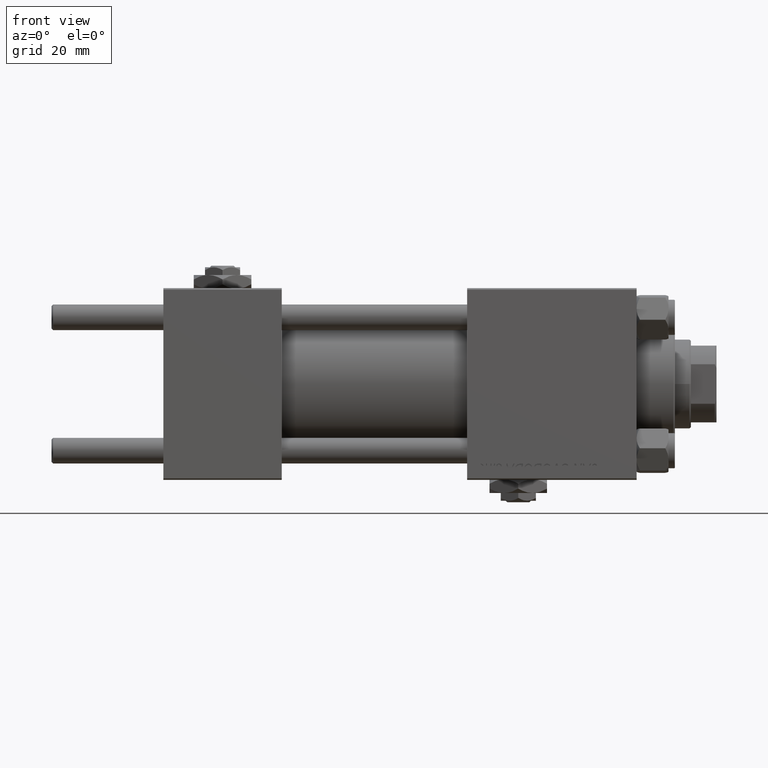
[diagram: clean part render]
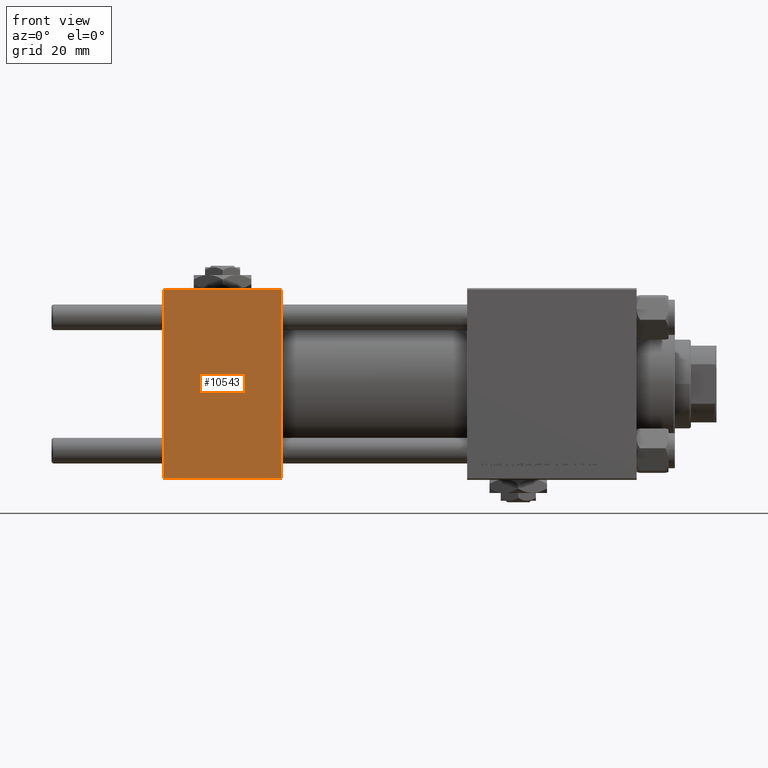
[diagram: same view with one face highlighted and labeled with its STEP entity id]
A machine part, front view. The second image highlights one B-rep face of the part: STEP entity #10543.
In plain terms, the highlighted planar face has unit normal (0, 1, 0).
Its self-contained STEP definition (entity closure, byte-faithful):
#229 = EDGE_LOOP ( 'NONE', ( #29115, #30409, #17295, #51229 ) ) ;
#1496 = LINE ( 'NONE', #33385, #31753 ) ;
#2002 = DIRECTION ( 'NONE',  ( 0.000000000000000000, 0.000000000000000000, -1.000000000000000000 ) ) ;
#2997 = PLANE ( 'NONE',  #30808 ) ;
#6889 = LINE ( 'NONE', #35083, #33407 ) ;
#7560 = CARTESIAN_POINT ( 'NONE',  ( 37.00000000000000000, -30.00000000000000000, -29.50000000000001776 ) ) ;
#8021 = VERTEX_POINT ( 'NONE', #12311 ) ;
#8049 = CARTESIAN_POINT ( 'NONE',  ( 37.00000000000000000, -30.00000000000000000, 29.49999999999999289 ) ) ;
#9221 = VECTOR ( 'NONE', #24189, 1000.000000000000000 ) ;
#10543 = ADVANCED_FACE ( 'NONE', ( #39105 ), #2997, .F. ) ;
#12311 = CARTESIAN_POINT ( 'NONE',  ( 0.000000000000000000, -30.00000000000000000, -29.50000000000001776 ) ) ;
#12925 = VERTEX_POINT ( 'NONE', #47316 ) ;
#16754 = EDGE_CURVE ( 'NONE', #8021, #37115, #40508, .T. ) ;
#17295 = ORIENTED_EDGE ( 'NONE', *, *, #48450, .F. ) ;
#22796 = DIRECTION ( 'NONE',  ( 0.000000000000000000, -0.000000000000000000, 1.000000000000000000 ) ) ;
#22985 = DIRECTION ( 'NONE',  ( 0.000000000000000000, 0.000000000000000000, -1.000000000000000000 ) ) ;
#24189 = DIRECTION ( 'NONE',  ( 1.000000000000000000, 0.000000000000000000, 0.000000000000000000 ) ) ;
#24383 = CARTESIAN_POINT ( 'NONE',  ( 0.000000000000000000, -30.00000000000000000, 29.49999999999999289 ) ) ;
#24415 = DIRECTION ( 'NONE',  ( -1.000000000000000000, 0.000000000000000000, 0.000000000000000000 ) ) ;
#27248 = DIRECTION ( 'NONE',  ( -0.000000000000000000, 1.000000000000000000, 0.000000000000000000 ) ) ;
#29115 = ORIENTED_EDGE ( 'NONE', *, *, #39344, .T. ) ;
#29687 = CARTESIAN_POINT ( 'NONE',  ( 37.00000000000000000, -30.00000000000000000, -29.50000000000001776 ) ) ;
#30409 = ORIENTED_EDGE ( 'NONE', *, *, #16754, .T. ) ;
#30691 = CARTESIAN_POINT ( 'NONE',  ( 37.00000000000000000, -30.00000000000000000, 29.99999999999999289 ) ) ;
#30808 = AXIS2_PLACEMENT_3D ( 'NONE', #30691, #27248, #22796 ) ;
#31753 = VECTOR ( 'NONE', #2002, 1000.000000000000000 ) ;
#32368 = EDGE_CURVE ( 'NONE', #12925, #47203, #44153, .T. ) ;
#33385 = CARTESIAN_POINT ( 'NONE',  ( 0.000000000000000000, -30.00000000000000000, 29.99999999999999289 ) ) ;
#33407 = VECTOR ( 'NONE', #22985, 1000.000000000000000 ) ;
#35083 = CARTESIAN_POINT ( 'NONE',  ( 37.00000000000000000, -30.00000000000000000, 29.99999999999999289 ) ) ;
#37115 = VERTEX_POINT ( 'NONE', #29687 ) ;
#39105 = FACE_OUTER_BOUND ( 'NONE', #229, .T. ) ;
#39344 = EDGE_CURVE ( 'NONE', #47203, #8021, #1496, .T. ) ;
#40508 = LINE ( 'NONE', #7560, #9221 ) ;
#41627 = VECTOR ( 'NONE', #24415, 1000.000000000000000 ) ;
#44153 = LINE ( 'NONE', #8049, #41627 ) ;
#47203 = VERTEX_POINT ( 'NONE', #24383 ) ;
#47316 = CARTESIAN_POINT ( 'NONE',  ( 37.00000000000000000, -30.00000000000000000, 29.49999999999999289 ) ) ;
#48450 = EDGE_CURVE ( 'NONE', #12925, #37115, #6889, .T. ) ;
#51229 = ORIENTED_EDGE ( 'NONE', *, *, #32368, .T. ) ;